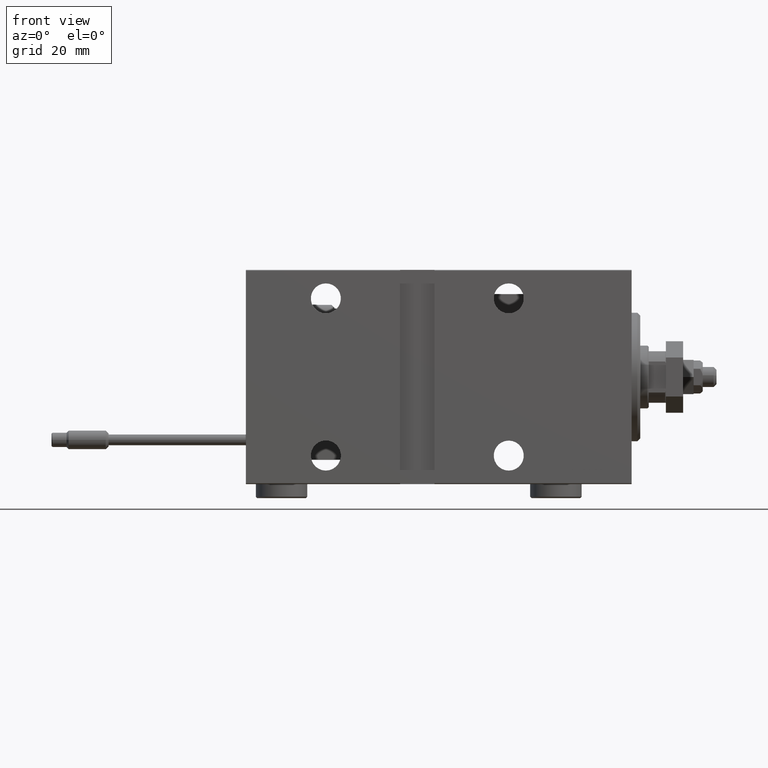
[diagram: clean part render]
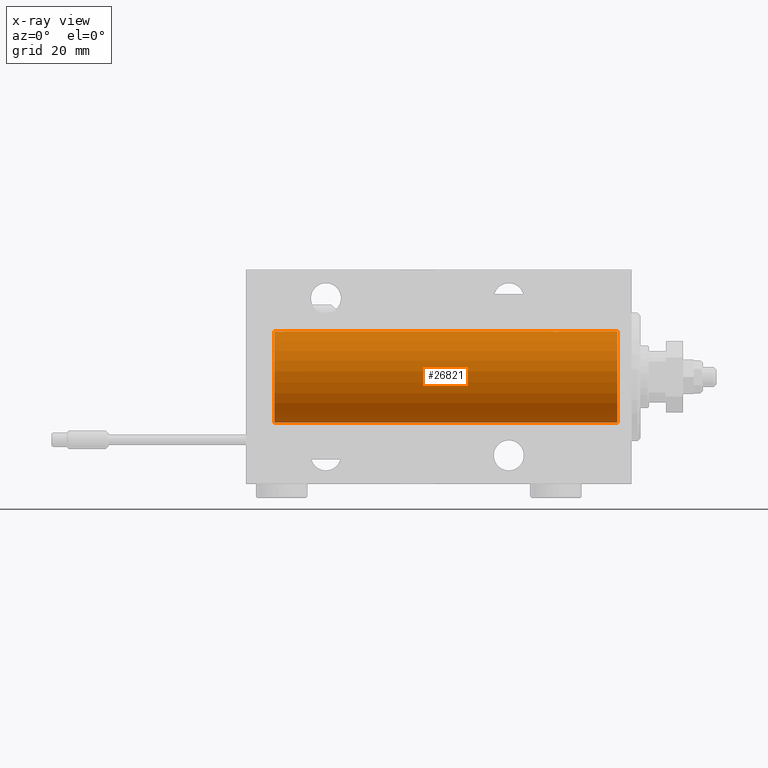
[diagram: x-ray — body ghosted, one internal face saturated and labeled with its STEP entity id]
A machine part, front view, then the same camera in x-ray: the body is ghosted and one INTERNAL B-rep face — a face not visible from any outside direction — is saturated and labeled: STEP entity #26821.
In plain terms, the highlighted cylindrical surface (partial cylindrical patch) has radius 16 mm, axis along (1, 0, -0).
Its self-contained STEP definition (entity closure, byte-faithful):
#194 = EDGE_LOOP ( 'NONE', ( #936, #45901, #5955, #18575, #44343, #7728, #37066, #7367 ) ) ;
#284 = CARTESIAN_POINT ( 'NONE',  ( 120.7651732932504984, 1.003662148334365289, 15.96885838080210362 ) ) ;
#538 = CARTESIAN_POINT ( 'NONE',  ( 121.9808690228988866, 1.935876924222072804, 15.88247600692093187 ) ) ;
#808 = CARTESIAN_POINT ( 'NONE',  ( 122.2374841699210180, 1.987008272775785622, 15.87616016863256618 ) ) ;
#851 = CARTESIAN_POINT ( 'NONE',  ( 28.39758870055591444, 0.6452446332038146437, 15.98744362947834574 ) ) ;
#936 = ORIENTED_EDGE ( 'NONE', *, *, #42877, .F. ) ;
#1091 = AXIS2_PLACEMENT_3D ( 'NONE', #39033, #19221, #35112 ) ;
#1102 = CARTESIAN_POINT ( 'NONE',  ( 28.00610712468246177, 1.322357532253821910, 15.94553003295878391 ) ) ;
#1359 = CARTESIAN_POINT ( 'NONE',  ( 26.76191462762254858, 1.999903730784154066, 15.87451999516785861 ) ) ;
#2105 = CARTESIAN_POINT ( 'NONE',  ( 125.0000000000000000, 1.959434878635765131E-15, -16.00000000000000000 ) ) ;
#2150 = DIRECTION ( 'NONE',  ( -1.000000000000000000, -0.000000000000000000, -0.000000000000000000 ) ) ;
#4197 = CARTESIAN_POINT ( 'NONE',  ( 124.4870052400841445, 0.2623312429553332770, 15.99836091803360105 ) ) ;
#4492 = CARTESIAN_POINT ( 'NONE',  ( 28.29713414748220046, 0.8874076679346754037, 15.97583181162460697 ) ) ;
#4974 = CARTESIAN_POINT ( 'NONE',  ( 124.5000000000000142, 3.590027768233731054E-15, 16.00000000000000000 ) ) ;
#5277 = VERTEX_POINT ( 'NONE', #14498 ) ;
#5484 = VERTEX_POINT ( 'NONE', #35262 ) ;
#5504 = LINE ( 'NONE', #2105, #48538 ) ;
#5524 = CARTESIAN_POINT ( 'NONE',  ( 25.17924175171067702, 1.507649250492130388, 15.92908549642226745 ) ) ;
#5955 = ORIENTED_EDGE ( 'NONE', *, *, #19984, .T. ) ;
#6269 = DIRECTION ( 'NONE',  ( -1.000000000000000000, -0.000000000000000000, -0.000000000000000000 ) ) ;
#6498 = CIRCLE ( 'NONE', #29033, 16.00000000000000000 ) ;
#7367 = ORIENTED_EDGE ( 'NONE', *, *, #23005, .T. ) ;
#7728 = ORIENTED_EDGE ( 'NONE', *, *, #44454, .T. ) ;
#8373 = CARTESIAN_POINT ( 'NONE',  ( 124.2971341474822253, 0.8874076679346750707, 15.97583181162460697 ) ) ;
#8580 = CIRCLE ( 'NONE', #1091, 16.00000000000000000 ) ;
#8673 = CARTESIAN_POINT ( 'NONE',  ( 24.51309075167874596, 0.2632563459770819736, 15.99834873924246459 ) ) ;
#8698 = EDGE_CURVE ( 'NONE', #37600, #5484, #6498, .T. ) ;
#8885 = CARTESIAN_POINT ( 'NONE',  ( 120.5000000000000142, -2.738767290746308786E-23, 16.00000000000000000 ) ) ;
#8936 = CARTESIAN_POINT ( 'NONE',  ( 25.28032342557723311, 1.590393755196000347, 15.92092783521424337 ) ) ;
#10145 = VECTOR ( 'NONE', #2150, 1000.000000000000000 ) ;
#10473 = CARTESIAN_POINT ( 'NONE',  ( 24.49999999999999289, 0.1305944228192297274, 15.99999999999999645 ) ) ;
#10736 = CARTESIAN_POINT ( 'NONE',  ( 24.50000000000000000, -2.739635037742051899E-23, 16.00000000000000000 ) ) ;
#11876 = CARTESIAN_POINT ( 'NONE',  ( 125.0000000000000000, 0.000000000000000000, 16.00000000000000000 ) ) ;
#12031 = CARTESIAN_POINT ( 'NONE',  ( 124.4361132668206551, 0.5181437283162084739, 15.99211983514075008 ) ) ;
#12558 = CARTESIAN_POINT ( 'NONE',  ( 120.5000000000000426, 0.1305944228192297552, 16.00000000000000000 ) ) ;
#12601 = CARTESIAN_POINT ( 'NONE',  ( 24.60216273501104567, 0.6445079780200539954, 15.98747331501412461 ) ) ;
#13065 = DIRECTION ( 'NONE',  ( -1.000000000000000000, 0.000000000000000000, 0.000000000000000000 ) ) ;
#13779 = VERTEX_POINT ( 'NONE', #14505 ) ;
#13868 = VERTEX_POINT ( 'NONE', #38236 ) ;
#14498 = CARTESIAN_POINT ( 'NONE',  ( 28.49999999999999645, -1.207828523974853969E-15, 16.00000000000000000 ) ) ;
#14505 = CARTESIAN_POINT ( 'NONE',  ( 5.000000000000004441, 0.000000000000000000, 16.00000000000000000 ) ) ;
#14704 = CARTESIAN_POINT ( 'NONE',  ( 125.0000000000000000, 0.000000000000000000, 16.00000000000000000 ) ) ;
#16201 = CARTESIAN_POINT ( 'NONE',  ( 120.7025007139496040, 0.8866640484200094541, 15.97587307151818159 ) ) ;
#16227 = VECTOR ( 'NONE', #47824, 1000.000000000000000 ) ;
#16509 = CARTESIAN_POINT ( 'NONE',  ( 25.49688752964961225, 1.735145127817741439, 15.90580292899658410 ) ) ;
#16723 = CARTESIAN_POINT ( 'NONE',  ( 120.9926283968757303, 1.321075116345873601, 15.94564302722883653 ) ) ;
#16770 = CARTESIAN_POINT ( 'NONE',  ( 25.85613031966986952, 1.898058445420883311, 15.88709929148890510 ) ) ;
#17026 = CARTESIAN_POINT ( 'NONE',  ( 27.50659181559580446, 1.747750603376297729, 15.90457341008072056 ) ) ;
#17281 = CARTESIAN_POINT ( 'NONE',  ( 26.23748416992101085, 1.987008272775788731, 15.87616016863256618 ) ) ;
#18575 = ORIENTED_EDGE ( 'NONE', *, *, #35090, .T. ) ;
#18858 = CARTESIAN_POINT ( 'NONE',  ( 125.0000000000000000, 0.000000000000000000, 16.00000000000000000 ) ) ;
#18864 = DIRECTION ( 'NONE',  ( -1.000000000000000000, -0.000000000000000000, -0.000000000000000000 ) ) ;
#18914 = B_SPLINE_CURVE_WITH_KNOTS ( 'NONE', 3,
 ( #4974, #47731, #4197, #12031, #27924, #8373, #43825, #20901, #48497, #24048, #39941, #36536, #20126, #28183, #808, #538, #36007, #24299, #40194, #32369, #36793, #16723, #32628, #284, #16201, #44596, #20378, #32103, #12558, #8885 ),
 .UNSPECIFIED., .F., .F.,
 ( 4, 2, 2, 2, 2, 2, 2, 2, 2, 2, 2, 2, 2, 2, 4 ),
 ( 3.488315472694475996E-18, 0.0003911894522871196605, 0.0007823789045742358516, 0.001173568356861352151, 0.001564757809148468234, 0.002347136713722699532, 0.003129515618296931263, 0.003520705070584047563, 0.003911894522871163862, 0.004303083975158279728, 0.004694273427445395594, 0.005085462879732512327, 0.005476652332019629060, 0.005867841784306744926, 0.006259031236593860792 ),
 .UNSPECIFIED. ) ;
#19221 = DIRECTION ( 'NONE',  ( -1.000000000000000000, 0.000000000000000000, 0.000000000000000000 ) ) ;
#19522 = CARTESIAN_POINT ( 'NONE',  ( 125.0000000000000000, 0.000000000000000000, 0.000000000000000000 ) ) ;
#19984 = EDGE_CURVE ( 'NONE', #37600, #40520, #21740, .T. ) ;
#20126 = CARTESIAN_POINT ( 'NONE',  ( 122.7619146276225450, 1.999903730784150069, 15.87451999516785861 ) ) ;
#20378 = CARTESIAN_POINT ( 'NONE',  ( 120.5643094707387348, 0.5198215460038717595, 15.99206840425679310 ) ) ;
#20682 = CARTESIAN_POINT ( 'NONE',  ( 28.49999999999998579, 0.1322838750249257511, 16.00000000000000000 ) ) ;
#20901 = CARTESIAN_POINT ( 'NONE',  ( 124.0905150485210129, 1.219564485341765758, 15.95382484008322344 ) ) ;
#21201 = CARTESIAN_POINT ( 'NONE',  ( 28.09051504852099512, 1.219564485341767091, 15.95382484008323409 ) ) ;
#21458 = CARTESIAN_POINT ( 'NONE',  ( 24.76517329325045225, 1.003662148334361959, 15.96885838080210007 ) ) ;
#21740 = LINE ( 'NONE', #30056, #10145 ) ;
#23005 = EDGE_CURVE ( 'NONE', #13779, #13868, #8580, .T. ) ;
#24048 = CARTESIAN_POINT ( 'NONE',  ( 123.7295611173978500, 1.598790766515140849, 15.92099550861381374 ) ) ;
#24299 = CARTESIAN_POINT ( 'NONE',  ( 121.6138224294273158, 1.797743958659247854, 15.89876304682111652 ) ) ;
#24346 = CARTESIAN_POINT ( 'NONE',  ( 28.48700524008413382, 0.2623312429553315561, 15.99836091803360105 ) ) ;
#24553 = CARTESIAN_POINT ( 'NONE',  ( 125.0000000000000000, 0.000000000000000000, 0.000000000000000000 ) ) ;
#25368 = CARTESIAN_POINT ( 'NONE',  ( 28.23568098498261492, 1.002241074716280655, 15.96895041604536480 ) ) ;
#26718 = CARTESIAN_POINT ( 'NONE',  ( 24.50000000000000000, -2.739635037742051899E-23, 16.00000000000000000 ) ) ;
#26743 = AXIS2_PLACEMENT_3D ( 'NONE', #19522, #31767, #50514 ) ;
#26821 = ADVANCED_FACE ( 'NONE', ( #27593 ), #47123, .F. ) ;
#27593 = FACE_OUTER_BOUND ( 'NONE', #194, .T. ) ;
#27924 = CARTESIAN_POINT ( 'NONE',  ( 124.3975887005559429, 0.6452446332038145327, 15.98744362947834929 ) ) ;
#28183 = CARTESIAN_POINT ( 'NONE',  ( 122.3701469164950311, 2.000047931387136213, 15.87450182760079898 ) ) ;
#28491 = CARTESIAN_POINT ( 'NONE',  ( 24.56430947073869930, 0.5198215460038717595, 15.99206840425678955 ) ) ;
#29033 = AXIS2_PLACEMENT_3D ( 'NONE', #24553, #13065, #40959 ) ;
#30056 = CARTESIAN_POINT ( 'NONE',  ( 125.0000000000000000, 0.000000000000000000, 16.00000000000000000 ) ) ;
#30397 = VECTOR ( 'NONE', #18864, 1000.000000000000000 ) ;
#31576 = B_SPLINE_CURVE_WITH_KNOTS ( 'NONE', 3,
 ( #33428, #20682, #24346, #36581, #851, #4492, #25368, #21201, #1102, #41258, #17026, #32925, #1359, #37092, #17281, #33182, #16770, #49049, #16509, #8936, #5524, #44385, #49298, #21458, #32416, #12601, #28491, #8673, #10473, #10736 ),
 .UNSPECIFIED., .F., .F.,
 ( 4, 2, 2, 2, 2, 2, 2, 2, 2, 2, 2, 2, 2, 2, 4 ),
 ( 1.745049934674283425E-18, 0.0003911894522871204737, 0.0007823789045742392126, 0.001173568356861357789, 0.001564757809148476691, 0.002347136713722706037, 0.003129515618296936034, 0.003520705070584051466, 0.003911894522871166464, 0.004303083975158282330, 0.004694273427445396461, 0.005085462879732512327, 0.005476652332019627326, 0.005867841784306743191, 0.006259031236593858190 ),
 .UNSPECIFIED. ) ;
#31767 = DIRECTION ( 'NONE',  ( -1.000000000000000000, -0.000000000000000000, -0.000000000000000000 ) ) ;
#32103 = CARTESIAN_POINT ( 'NONE',  ( 120.5130907516787602, 0.2632563459770823622, 15.99834873924246104 ) ) ;
#32204 = LINE ( 'NONE', #11876, #16227 ) ;
#32369 = CARTESIAN_POINT ( 'NONE',  ( 121.2803234255772225, 1.590393755196000125, 15.92092783521423627 ) ) ;
#32416 = CARTESIAN_POINT ( 'NONE',  ( 24.70250071394960045, 0.8866640484200088990, 15.97587307151817448 ) ) ;
#32628 = CARTESIAN_POINT ( 'NONE',  ( 120.9099847189987855, 1.220169175415117158, 15.95377581882983975 ) ) ;
#32925 = CARTESIAN_POINT ( 'NONE',  ( 27.02531756459403667, 1.947280337074160927, 15.88137861827786779 ) ) ;
#33042 = VERTEX_POINT ( 'NONE', #40600 ) ;
#33182 = CARTESIAN_POINT ( 'NONE',  ( 25.98086902289887234, 1.935876924222074358, 15.88247600692093187 ) ) ;
#33428 = CARTESIAN_POINT ( 'NONE',  ( 28.49999999999999645, -1.207828523974853969E-15, 16.00000000000000000 ) ) ;
#33677 = CARTESIAN_POINT ( 'NONE',  ( 124.5000000000000142, 3.590027768233731054E-15, 16.00000000000000000 ) ) ;
#33897 = VERTEX_POINT ( 'NONE', #26718 ) ;
#35090 = EDGE_CURVE ( 'NONE', #40520, #33042, #18914, .T. ) ;
#35112 = DIRECTION ( 'NONE',  ( 0.000000000000000000, 0.000000000000000000, 1.000000000000000000 ) ) ;
#35262 = CARTESIAN_POINT ( 'NONE',  ( 125.0000000000000000, 1.959434878635765131E-15, -16.00000000000000000 ) ) ;
#36007 = CARTESIAN_POINT ( 'NONE',  ( 121.8561303196698589, 1.898058445420877982, 15.88709929148890154 ) ) ;
#36536 = CARTESIAN_POINT ( 'NONE',  ( 123.0253175645940047, 1.947280337074161150, 15.88137861827787489 ) ) ;
#36581 = CARTESIAN_POINT ( 'NONE',  ( 28.43611326682063378, 0.5181437283162068086, 15.99211983514074298 ) ) ;
#36793 = CARTESIAN_POINT ( 'NONE',  ( 121.1792417517106912, 1.507649250492121951, 15.92908549642226745 ) ) ;
#37066 = ORIENTED_EDGE ( 'NONE', *, *, #46709, .T. ) ;
#37092 = CARTESIAN_POINT ( 'NONE',  ( 26.37014691649501685, 2.000047931387139322, 15.87450182760079187 ) ) ;
#37600 = VERTEX_POINT ( 'NONE', #18858 ) ;
#38210 = EDGE_CURVE ( 'NONE', #33042, #5277, #32204, .T. ) ;
#38236 = CARTESIAN_POINT ( 'NONE',  ( 5.000000000000004441, 1.959434878635765131E-15, -16.00000000000000000 ) ) ;
#39033 = CARTESIAN_POINT ( 'NONE',  ( 5.000000000000004441, 0.000000000000000000, 0.000000000000000000 ) ) ;
#39941 = CARTESIAN_POINT ( 'NONE',  ( 123.5065918155958542, 1.747750603376302614, 15.90457341008073477 ) ) ;
#40194 = CARTESIAN_POINT ( 'NONE',  ( 121.4968875296496407, 1.735145127817741662, 15.90580292899658410 ) ) ;
#40520 = VERTEX_POINT ( 'NONE', #33677 ) ;
#40600 = CARTESIAN_POINT ( 'NONE',  ( 120.5000000000000142, -2.738767290746308786E-23, 16.00000000000000000 ) ) ;
#40959 = DIRECTION ( 'NONE',  ( 0.000000000000000000, 0.000000000000000000, 1.000000000000000000 ) ) ;
#41258 = CARTESIAN_POINT ( 'NONE',  ( 27.72956111739783580, 1.598790766515148620, 15.92099550861380131 ) ) ;
#42877 = EDGE_CURVE ( 'NONE', #5484, #13868, #5504, .T. ) ;
#43825 = CARTESIAN_POINT ( 'NONE',  ( 124.2356809849826220, 1.002241074716279989, 15.96895041604535770 ) ) ;
#44343 = ORIENTED_EDGE ( 'NONE', *, *, #38210, .T. ) ;
#44385 = CARTESIAN_POINT ( 'NONE',  ( 24.99262839687570903, 1.321075116345881595, 15.94564302722883298 ) ) ;
#44454 = EDGE_CURVE ( 'NONE', #5277, #33897, #31576, .T. ) ;
#44596 = CARTESIAN_POINT ( 'NONE',  ( 120.6021627350110634, 0.6445079780200545505, 15.98747331501412461 ) ) ;
#45901 = ORIENTED_EDGE ( 'NONE', *, *, #8698, .F. ) ;
#46709 = EDGE_CURVE ( 'NONE', #33897, #13779, #46986, .T. ) ;
#46986 = LINE ( 'NONE', #14704, #30397 ) ;
#47123 = CYLINDRICAL_SURFACE ( 'NONE', #26743, 16.00000000000000000 ) ;
#47731 = CARTESIAN_POINT ( 'NONE',  ( 124.5000000000000568, 0.1322838750249261675, 16.00000000000000355 ) ) ;
#47824 = DIRECTION ( 'NONE',  ( -1.000000000000000000, -0.000000000000000000, -0.000000000000000000 ) ) ;
#48497 = CARTESIAN_POINT ( 'NONE',  ( 124.0061071246824866, 1.322357532253812806, 15.94553003295878391 ) ) ;
#48538 = VECTOR ( 'NONE', #6269, 1000.000000000000000 ) ;
#49049 = CARTESIAN_POINT ( 'NONE',  ( 25.61382242942729803, 1.797743958659254515, 15.89876304682112007 ) ) ;
#49298 = CARTESIAN_POINT ( 'NONE',  ( 24.90998471899876066, 1.220169175415113827, 15.95377581882983442 ) ) ;
#50514 = DIRECTION ( 'NONE',  ( 0.000000000000000000, 0.000000000000000000, 1.000000000000000000 ) ) ;